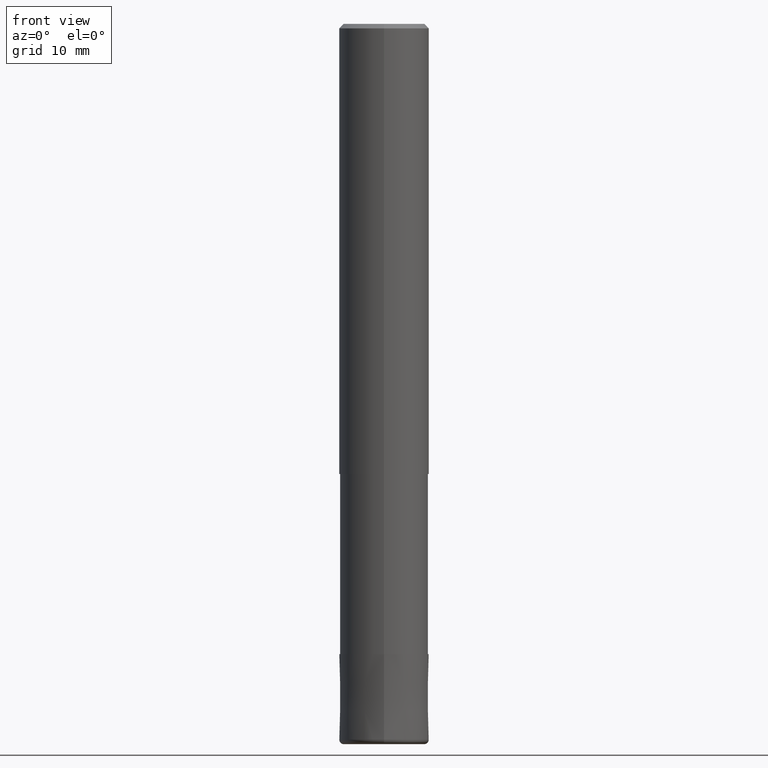
[diagram: clean part render]
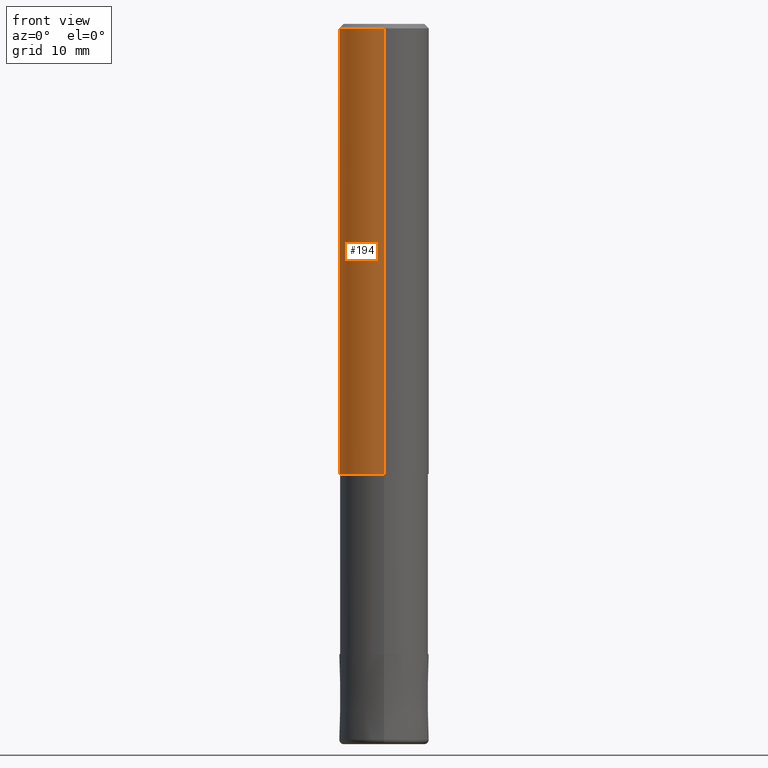
[diagram: same view with one face highlighted and labeled with its STEP entity id]
A machine part, front view. The second image highlights one B-rep face of the part: STEP entity #194.
In plain terms, the highlighted cylindrical surface (partial cylindrical patch) has radius 5 mm, axis along (-0, -0, 1).
Its self-contained STEP definition (entity closure, byte-faithful):
#100=VERTEX_POINT('',#238);
#114=VERTEX_POINT('',#253);
#138=VERTEX_POINT('',#280);
#158=VERTEX_POINT('',#302);
#166=EDGE_CURVE('',#138,#100,#311,.T.);
#178=EDGE_CURVE('',#158,#100,#325,.T.);
#180=EDGE_CURVE('',#114,#138,#327,.T.);
#190=EDGE_CURVE('',#158,#114,#340,.T.);
#194=ADVANCED_FACE('',(#344),#345,.T.);
#238=CARTESIAN_POINT('',(0.0,5.0,-50.0));
#253=CARTESIAN_POINT('',(6.12303176911189E-016,-5.0,-0.5));
#280=CARTESIAN_POINT('',(0.0,5.0,-0.5));
#302=CARTESIAN_POINT('',(6.12303176911189E-016,-5.0,-50.0));
#311=LINE('',#472,#473);
#325=CIRCLE('',#491,5.0);
#327=CIRCLE('',#494,5.0);
#340=LINE('',#511,#512);
#344=FACE_OUTER_BOUND('',#517,.T.);
#345=CYLINDRICAL_SURFACE('',#518,5.0);
#472=CARTESIAN_POINT('',(-6.12303176911189E-016,5.0,-25.25));
#473=VECTOR('',#634,1.0);
#491=AXIS2_PLACEMENT_3D('',#655,#656,#657);
#494=AXIS2_PLACEMENT_3D('',#658,#659,#660);
#511=CARTESIAN_POINT('',(6.12303176911189E-016,-5.0,-25.25));
#512=VECTOR('',#681,1.0);
#517=EDGE_LOOP('',(#686,#687,#688,#689));
#518=AXIS2_PLACEMENT_3D('',#690,#691,#692);
#634=DIRECTION('',(0.0,0.0,-1.0));
#655=CARTESIAN_POINT('',(0.0,0.0,-50.0));
#656=DIRECTION('',(0.0,0.0,-1.0));
#657=DIRECTION('',(0.0,1.0,0.0));
#658=CARTESIAN_POINT('',(0.0,0.0,-0.5));
#659=DIRECTION('',(0.0,0.0,-1.0));
#660=DIRECTION('',(0.0,1.0,0.0));
#681=DIRECTION('',(-0.0,-0.0,1.0));
#686=ORIENTED_EDGE('',*,*,#166,.T.);
#687=ORIENTED_EDGE('',*,*,#178,.F.);
#688=ORIENTED_EDGE('',*,*,#190,.T.);
#689=ORIENTED_EDGE('',*,*,#180,.T.);
#690=CARTESIAN_POINT('',(0.0,0.0,-25.25));
#691=DIRECTION('',(-0.0,-0.0,1.0));
#692=DIRECTION('',(0.0,1.0,0.0));